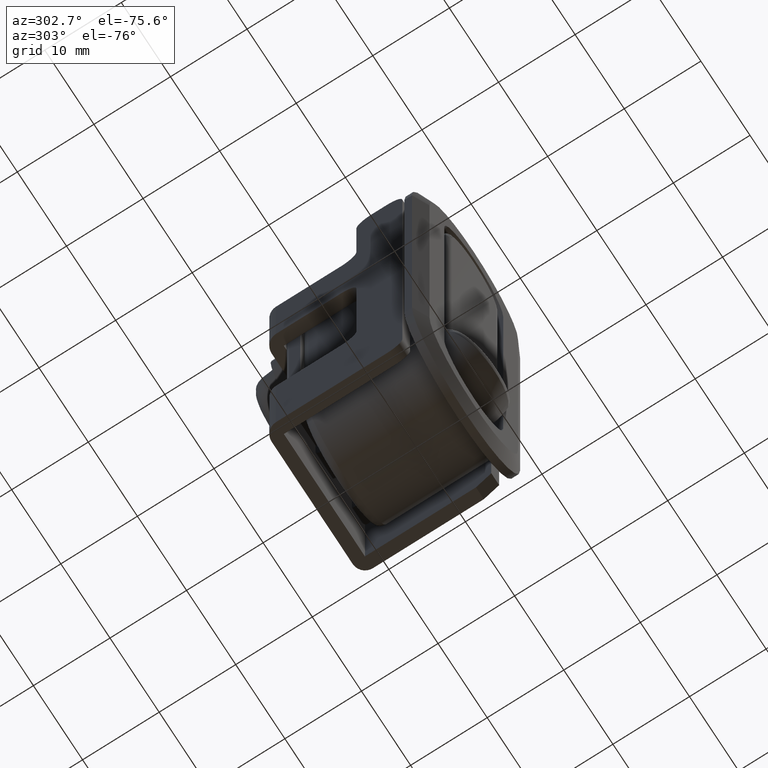
[diagram: clean part render]
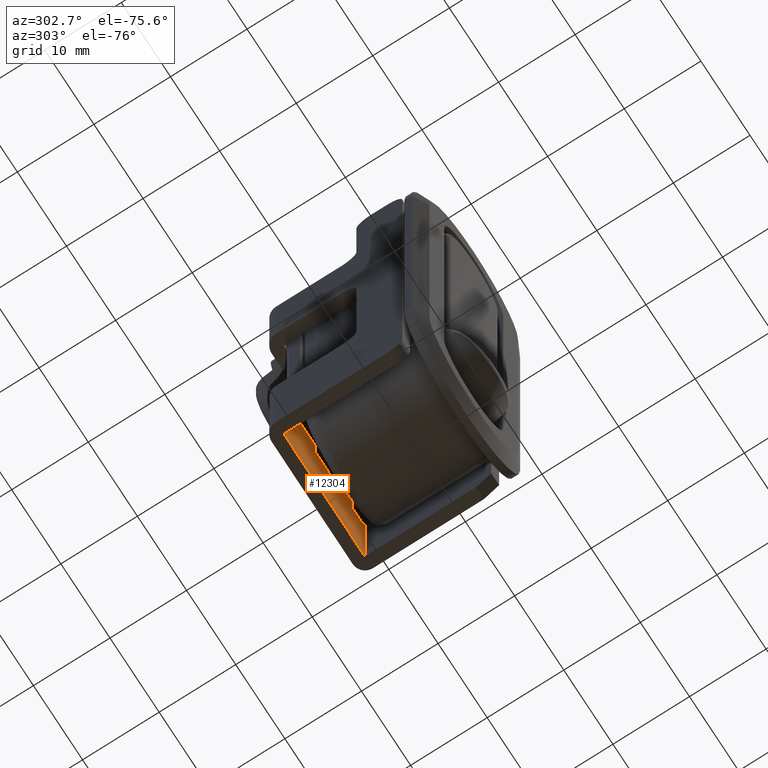
[diagram: same view with one face highlighted and labeled with its STEP entity id]
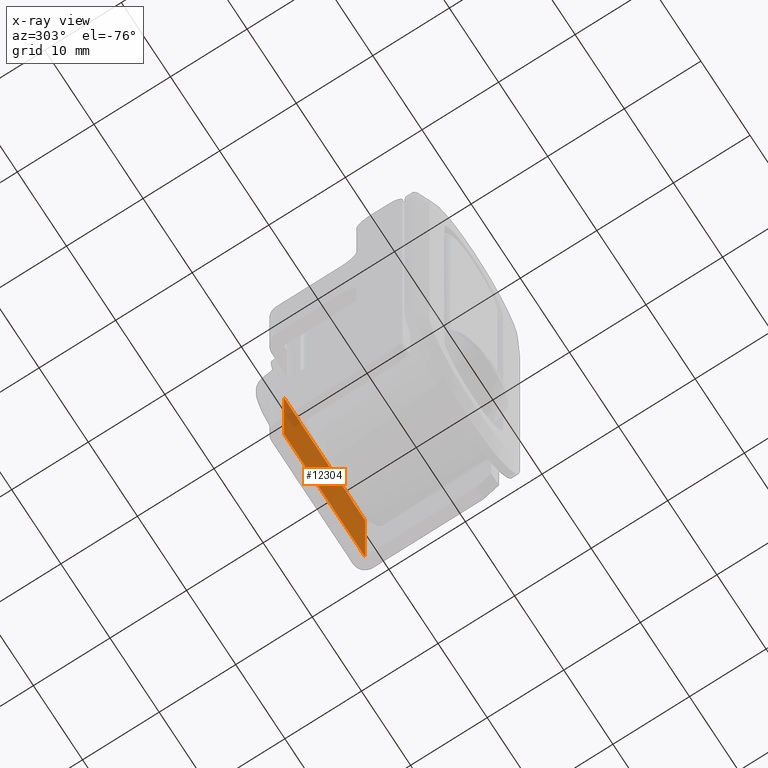
[diagram: x-ray of the same camera — body ghosted, the highlighted face saturated]
A machine part, auxiliary view. The second image highlights one B-rep face of the part: STEP entity #12304.
The next image is the same camera in x-ray: the body ghosted, the highlighted face saturated — about 7% of this face is hidden behind the body in this view.
In plain terms, the highlighted face is a freeform B-spline surface patch.
Its self-contained STEP definition (entity closure, byte-faithful):
#12269=CARTESIAN_POINT('',(9.074174968108014,12.000000000057289,0.799199969349010));
#12270=CARTESIAN_POINT('',(9.074174968108014,12.000000000076639,-16.799200397717609));
#12271=CARTESIAN_POINT('',(-9.074175410461612,12.000000000057289,0.799199969349010));
#12272=CARTESIAN_POINT('',(-9.074175410461612,12.000000000076639,-16.799200397717609));
#12273=B_SPLINE_SURFACE_WITH_KNOTS('',1,1,((#12269,#12271),(#12270,#12272)),.UNSPECIFIED.,.F.,.F.,.U.,(2,2),(2,2),(0.0,17.598400367066610),(0.0,18.148350378569621),.UNSPECIFIED.);
#12274=CARTESIAN_POINT('',(8.250000000089781,12.000000000075760,-15.999999999578201));
#12275=VERTEX_POINT('',#12274);
#12276=CARTESIAN_POINT('',(8.250000000089781,12.000000000058160,3.630478E-010));
#12277=VERTEX_POINT('',#12276);
#12278=CARTESIAN_POINT('',(8.250000000089781,12.000000000075760,-15.999999999578201));
#12279=CARTESIAN_POINT('',(8.250000000089781,12.000000000058160,3.630478E-010));
#12280=QUASI_UNIFORM_CURVE('',1,(#12278,#12279),.UNSPECIFIED.,.F.,.U.);
#12281=EDGE_CURVE('',#12275,#12277,#12280,.T.);
#12282=ORIENTED_EDGE('',*,*,#12281,.T.);
#12283=CARTESIAN_POINT('',(-8.249999999878890,12.000000000058160,3.630478E-010));
#12284=VERTEX_POINT('',#12283);
#12285=CARTESIAN_POINT('',(-8.249999999878890,12.000000000058160,3.630478E-010));
#12286=CARTESIAN_POINT('',(8.250000000089781,12.000000000058160,3.630478E-010));
#12287=QUASI_UNIFORM_CURVE('',1,(#12285,#12286),.UNSPECIFIED.,.F.,.U.);
#12288=EDGE_CURVE('',#12284,#12277,#12287,.T.);
#12289=ORIENTED_EDGE('',*,*,#12288,.F.);
#12290=CARTESIAN_POINT('',(-8.249999999878890,12.000000000075760,-15.999999999578201));
#12291=VERTEX_POINT('',#12290);
#12292=CARTESIAN_POINT('',(-8.249999999878890,12.000000000075760,-15.999999999578201));
#12293=CARTESIAN_POINT('',(-8.249999999878890,12.000000000058160,3.630478E-010));
#12294=QUASI_UNIFORM_CURVE('',1,(#12292,#12293),.UNSPECIFIED.,.F.,.U.);
#12295=EDGE_CURVE('',#12291,#12284,#12294,.T.);
#12296=ORIENTED_EDGE('',*,*,#12295,.F.);
#12297=CARTESIAN_POINT('',(-8.249999999878890,12.000000000075760,-15.999999999578201));
#12298=CARTESIAN_POINT('',(8.250000000089781,12.000000000075760,-15.999999999578201));
#12299=QUASI_UNIFORM_CURVE('',1,(#12297,#12298),.UNSPECIFIED.,.F.,.U.);
#12300=EDGE_CURVE('',#12291,#12275,#12299,.T.);
#12301=ORIENTED_EDGE('',*,*,#12300,.T.);
#12302=EDGE_LOOP('',(#12282,#12289,#12296,#12301));
#12303=FACE_OUTER_BOUND('',#12302,.T.);
#12304=ADVANCED_FACE('',(#12303),#12273,.F.);